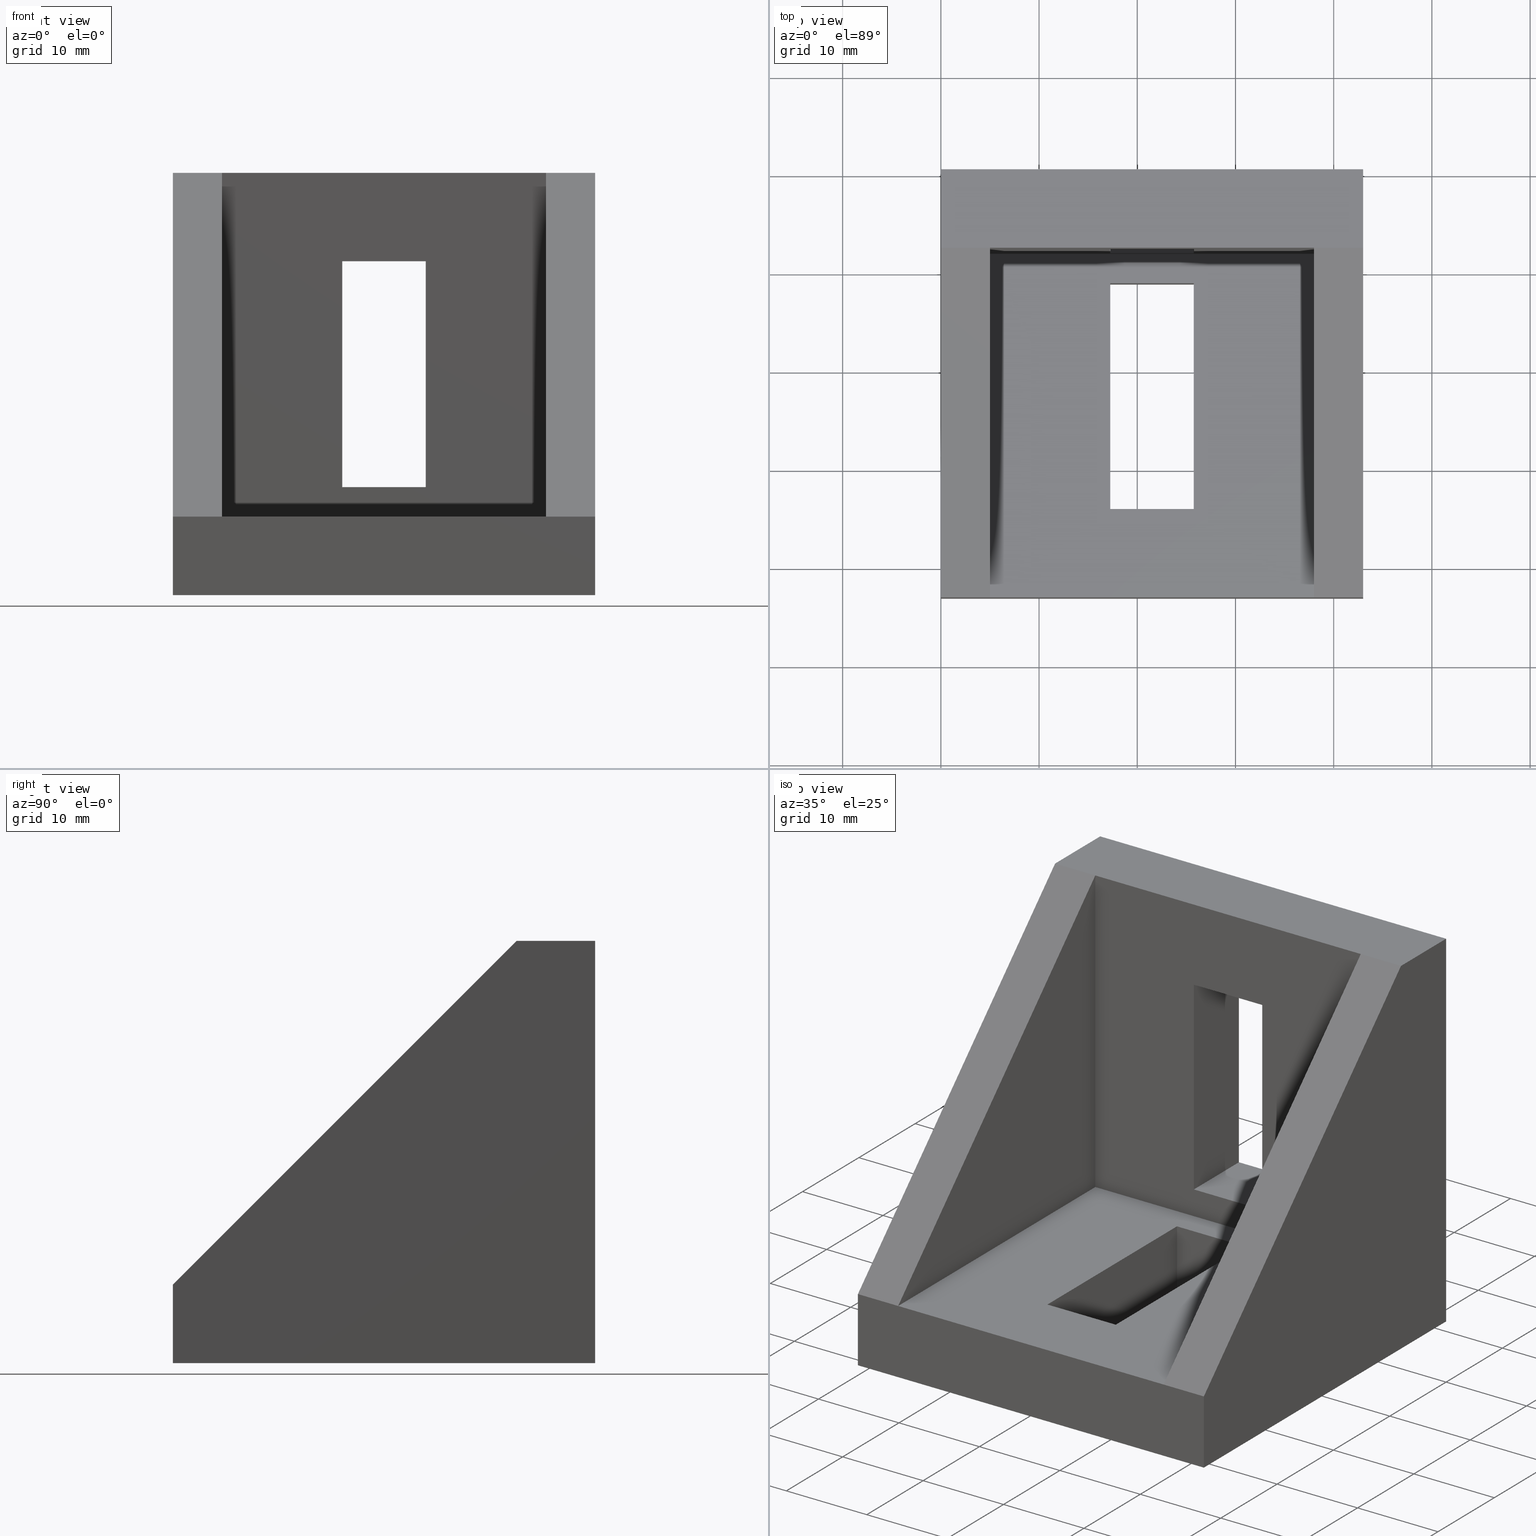
[diagram: canonical four-view strip — front | top / right | iso, engineering-drawing reading convention]
A machine part, canonical four-view strip (front | top / right | iso — engineering-drawing reading convention). The complete STEP part file that produces these views, byte-faithful:
ISO-10303-21;
HEADER;
/****************************************************************
 * Generated by software with PDE/Lib inside                    *
 * PDElib Version v4.4, created Mon 02/23/2004                  *
 * International Technegroup Inc. (www.iti-oh.com)              *
 ****************************************************************/
FILE_DESCRIPTION(('STEP AP203'),'2;1');
FILE_NAME('30.053.00.stp','2011-03-07T09:53:58',(''),(''),'2009.3.110','THINKDESIGN','');
FILE_SCHEMA(('CONFIG_CONTROL_DESIGN'));
ENDSEC;
DATA;
#2=CARTESIAN_POINT('',(2.864376E-014,5.421043E-014,-2.632989E-015));
#3=DIRECTION('',(0.000000025809569,1.224647E-016,1.000000000000000));
#4=DIRECTION('',(0.0,-1.0,0.0));
#5=AXIS2_PLACEMENT_3D('',#2,#3,#4);
#6=PLANE('',#5);
#7=CARTESIAN_POINT('',(2.864376E-014,5.421043E-014,-2.632989E-015));
#8=VERTEX_POINT('',#7);
#9=CARTESIAN_POINT('',(42.999999999827985,5.947641E-014,-0.000001109811490));
#10=VERTEX_POINT('',#9);
#11=CARTESIAN_POINT('',(2.864376E-014,5.421043E-014,-2.632989E-015));
#12=DIRECTION('',(1.000000000000000,1.224647E-016,-0.000000025809569));
#13=VECTOR('',#12,42.999999999827970);
#14=LINE('',#11,#13);
#15=EDGE_CURVE('',#8,#10,#14,.T.);
#16=ORIENTED_EDGE('',*,*,#15,.T.);
#17=CARTESIAN_POINT('',(42.999999999827992,-42.999999999827985,-0.000001109811481));
#18=VERTEX_POINT('',#17);
#19=CARTESIAN_POINT('',(42.999999999827985,6.394885E-014,-0.000001109811490));
#20=DIRECTION('',(0.0,-1.0,0.0));
#21=VECTOR('',#20,42.999999999828049);
#22=LINE('',#19,#21);
#23=EDGE_CURVE('',#10,#18,#22,.T.);
#24=ORIENTED_EDGE('',*,*,#23,.T.);
#25=CARTESIAN_POINT('',(3.390974E-014,-42.999999999827992,4.476881E-015));
#26=VERTEX_POINT('',#25);
#27=CARTESIAN_POINT('',(3.390974E-014,-42.999999999827992,4.476881E-015));
#28=DIRECTION('',(1.000000000000000,1.652425E-016,-0.000000025809569));
#29=VECTOR('',#28,42.999999999827970);
#30=LINE('',#27,#29);
#31=EDGE_CURVE('',#26,#18,#30,.T.);
#32=ORIENTED_EDGE('',*,*,#31,.F.);
#33=CARTESIAN_POINT('',(2.864376E-014,5.684342E-014,-2.632989E-015));
#34=DIRECTION('',(0.0,-1.0,0.0));
#35=VECTOR('',#34,42.999999999828049);
#36=LINE('',#33,#35);
#37=EDGE_CURVE('',#8,#26,#36,.T.);
#38=ORIENTED_EDGE('',*,*,#37,.F.);
#39=EDGE_LOOP('',(#16,#24,#32,#38));
#40=FACE_OUTER_BOUND('',#39,.T.);
#41=CARTESIAN_POINT('',(25.749999999897010,-10.999999999955948,-0.000000664596420));
#42=VERTEX_POINT('',#41);
#43=CARTESIAN_POINT('',(25.749999999897014,-33.999999999863746,-0.000000664596413));
#44=VERTEX_POINT('',#43);
#45=CARTESIAN_POINT('',(25.749999999897010,-10.999999999955948,-0.000000664596420));
#46=DIRECTION('',(0.0,-1.0,0.0));
#47=VECTOR('',#46,22.999999999907800);
#48=LINE('',#45,#47);
#49=EDGE_CURVE('',#42,#44,#48,.T.);
#50=ORIENTED_EDGE('',*,*,#49,.F.);
#51=CARTESIAN_POINT('',(17.249999999930843,-10.999999999955950,-0.000000445215080));
#52=VERTEX_POINT('',#51);
#53=CARTESIAN_POINT('',(17.249999999930843,-10.999999999955950,-0.000000445215080));
#54=DIRECTION('',(1.000000000000000,2.089832E-016,-0.000000025809569));
#55=VECTOR('',#54,8.499999999966169);
#56=LINE('',#53,#55);
#57=EDGE_CURVE('',#52,#42,#56,.T.);
#58=ORIENTED_EDGE('',*,*,#57,.F.);
#59=CARTESIAN_POINT('',(17.249999999930843,-33.999999999863746,-0.000000445215072));
#60=VERTEX_POINT('',#59);
#61=CARTESIAN_POINT('',(17.249999999930843,-33.999999999863746,-0.000000445215072));
#62=DIRECTION('',(0.0,1.0,0.0));
#63=VECTOR('',#62,22.999999999907796);
#64=LINE('',#61,#63);
#65=EDGE_CURVE('',#60,#52,#64,.T.);
#66=ORIENTED_EDGE('',*,*,#65,.F.);
#67=CARTESIAN_POINT('',(17.249999999930843,-33.999999999863746,-0.000000445215072));
#68=DIRECTION('',(1.000000000000000,0.0,-0.000000025809569));
#69=VECTOR('',#68,8.499999999966175);
#70=LINE('',#67,#69);
#71=EDGE_CURVE('',#60,#44,#70,.T.);
#72=ORIENTED_EDGE('',*,*,#71,.T.);
#73=EDGE_LOOP('',(#50,#58,#66,#72));
#74=FACE_BOUND('',#73,.T.);
#75=ADVANCED_FACE('',(#40,#74),#6,.F.);
#76=CARTESIAN_POINT('',(3.390974E-014,-42.999999999827992,4.476881E-015));
#77=DIRECTION('',(0.0,1.0,0.0));
#78=DIRECTION('',(0.000000025809569,0.0,1.000000000000000));
#79=AXIS2_PLACEMENT_3D('',#76,#77,#78);
#80=PLANE('',#79);
#81=ORIENTED_EDGE('',*,*,#31,.T.);
#82=CARTESIAN_POINT('',(43.000000206304527,-42.999999999827978,7.999998335251010));
#83=VERTEX_POINT('',#82);
#84=CARTESIAN_POINT('',(42.999999999827992,-42.999999999827985,-0.000001109811481));
#85=DIRECTION('',(0.000000025809569,0.0,1.000000000000000));
#86=VECTOR('',#85,7.999999445062485);
#87=LINE('',#84,#86);
#88=EDGE_CURVE('',#18,#83,#87,.T.);
#89=ORIENTED_EDGE('',*,*,#88,.T.);
#90=CARTESIAN_POINT('',(37.999999859088902,-42.999999999827978,7.999998464298865));
#91=VERTEX_POINT('',#90);
#92=CARTESIAN_POINT('',(37.999999859088902,-42.999999999827978,7.999998464298865));
#93=DIRECTION('',(1.000000000000000,0.0,-0.000000025809569));
#94=VECTOR('',#93,5.000000347215627);
#95=LINE('',#92,#94);
#96=EDGE_CURVE('',#91,#83,#95,.T.);
#97=ORIENTED_EDGE('',*,*,#96,.F.);
#98=CARTESIAN_POINT('',(4.999999859221011,-42.999999999827985,7.999999316014653));
#99=VERTEX_POINT('',#98);
#100=CARTESIAN_POINT('',(4.999999859221011,-42.999999999827985,7.999999316014653));
#101=DIRECTION('',(1.000000000000000,2.153160E-016,-0.000000025809569));
#102=VECTOR('',#101,32.999999999867896);
#103=LINE('',#100,#102);
#104=EDGE_CURVE('',#99,#91,#103,.T.);
#105=ORIENTED_EDGE('',*,*,#104,.F.);
#106=CARTESIAN_POINT('',(0.000000206476568,-42.999999999827985,7.999999445062490));
#107=VERTEX_POINT('',#106);
#108=CARTESIAN_POINT('',(0.000000206476568,-42.999999999827985,7.999999445062490));
#109=DIRECTION('',(1.000000000000000,0.0,-0.000000025809569));
#110=VECTOR('',#109,4.999999652744444);
#111=LINE('',#108,#110);
#112=EDGE_CURVE('',#107,#99,#111,.T.);
#113=ORIENTED_EDGE('',*,*,#112,.F.);
#114=CARTESIAN_POINT('',(3.390974E-014,-42.999999999827992,4.440892E-015));
#115=DIRECTION('',(0.000000025809569,0.0,1.000000000000000));
#116=VECTOR('',#115,7.999999445062485);
#117=LINE('',#114,#116);
#118=EDGE_CURVE('',#26,#107,#117,.T.);
#119=ORIENTED_EDGE('',*,*,#118,.F.);
#120=EDGE_LOOP('',(#81,#89,#97,#105,#113,#119));
#121=FACE_OUTER_BOUND('',#120,.T.);
#122=ADVANCED_FACE('',(#121),#80,.F.);
#123=CARTESIAN_POINT('',(0.000000206476568,-42.999999999827985,7.999999445062490));
#124=DIRECTION('',(-0.000000018250122,0.707106781186547,-0.707106781186548));
#125=DIRECTION('',(0.000000018250122,0.707106781186548,0.707106781186547));
#126=AXIS2_PLACEMENT_3D('',#123,#124,#125);
#127=PLANE('',#126);
#128=ORIENTED_EDGE('',*,*,#112,.T.);
#129=CARTESIAN_POINT('',(5.000000762555938,-7.999999999968056,42.999999315874504));
#130=VERTEX_POINT('',#129);
#131=CARTESIAN_POINT('',(4.999999859221011,-42.999999999827985,7.999999316014653));
#132=DIRECTION('',(0.000000018250121,0.707106781186548,0.707106781186547));
#133=VECTOR('',#132,49.497474682860201);
#134=LINE('',#131,#133);
#135=EDGE_CURVE('',#99,#130,#134,.T.);
#136=ORIENTED_EDGE('',*,*,#135,.T.);
#137=CARTESIAN_POINT('',(0.000001109811495,-7.999999999968057,42.999999444922345));
#138=VERTEX_POINT('',#137);
#139=CARTESIAN_POINT('',(0.000001109811495,-7.999999999968057,42.999999444922345));
#140=DIRECTION('',(1.000000000000000,1.776357E-016,-0.000000025809569));
#141=VECTOR('',#140,4.999999652744444);
#142=LINE('',#139,#141);
#143=EDGE_CURVE('',#138,#130,#142,.T.);
#144=ORIENTED_EDGE('',*,*,#143,.F.);
#145=CARTESIAN_POINT('',(0.000000206476568,-42.999999999827985,7.999999445062493));
#146=DIRECTION('',(0.000000018250122,0.707106781186548,0.707106781186547));
#147=VECTOR('',#146,49.497474682860194);
#148=LINE('',#145,#147);
#149=EDGE_CURVE('',#107,#138,#148,.T.);
#150=ORIENTED_EDGE('',*,*,#149,.F.);
#151=EDGE_LOOP('',(#128,#136,#144,#150));
#152=FACE_OUTER_BOUND('',#151,.T.);
#153=ADVANCED_FACE('',(#152),#127,.F.);
#154=CARTESIAN_POINT('',(0.000000206476568,-42.999999999827985,7.999999445062490));
#155=DIRECTION('',(-0.000000018250122,0.707106781186547,-0.707106781186548));
#156=DIRECTION('',(0.000000018250122,0.707106781186548,0.707106781186547));
#157=AXIS2_PLACEMENT_3D('',#154,#155,#156);
#158=PLANE('',#157);
#159=CARTESIAN_POINT('',(43.000001109639449,-7.999999999968051,42.999998335110874));
#160=VERTEX_POINT('',#159);
#161=CARTESIAN_POINT('',(43.000000206304520,-42.999999999827985,7.999998335251014));
#162=DIRECTION('',(0.000000018250122,0.707106781186548,0.707106781186547));
#163=VECTOR('',#162,49.497474682860201);
#164=LINE('',#161,#163);
#165=EDGE_CURVE('',#83,#160,#164,.T.);
#166=ORIENTED_EDGE('',*,*,#165,.T.);
#167=CARTESIAN_POINT('',(38.000000762423824,-7.999999999968052,42.999998464158729));
#168=VERTEX_POINT('',#167);
#169=CARTESIAN_POINT('',(38.000000762423824,-7.999999999968052,42.999998464158729));
#170=DIRECTION('',(1.000000000000000,1.776357E-016,-0.000000025809569));
#171=VECTOR('',#170,5.000000347215627);
#172=LINE('',#169,#171);
#173=EDGE_CURVE('',#168,#160,#172,.T.);
#174=ORIENTED_EDGE('',*,*,#173,.F.);
#175=CARTESIAN_POINT('',(37.999999859088902,-42.999999999827978,7.999998464298865));
#176=DIRECTION('',(0.000000018250122,0.707106781186548,0.707106781186547));
#177=VECTOR('',#176,49.497474682860201);
#178=LINE('',#175,#177);
#179=EDGE_CURVE('',#91,#168,#178,.T.);
#180=ORIENTED_EDGE('',*,*,#179,.F.);
#181=ORIENTED_EDGE('',*,*,#96,.T.);
#182=EDGE_LOOP('',(#166,#174,#180,#181));
#183=FACE_OUTER_BOUND('',#182,.T.);
#184=ADVANCED_FACE('',(#183),#158,.F.);
#185=CARTESIAN_POINT('',(0.000001109811495,-7.999999999968057,42.999999444922345));
#186=DIRECTION('',(-0.000000025809569,8.881784E-016,-1.000000000000000));
#187=DIRECTION('',(0.0,1.0,0.0));
#188=AXIS2_PLACEMENT_3D('',#185,#186,#187);
#189=PLANE('',#188);
#190=ORIENTED_EDGE('',*,*,#143,.T.);
#191=CARTESIAN_POINT('',(5.000000762555938,-7.999999999968056,42.999999315874511));
#192=DIRECTION('',(1.000000000000000,1.076580E-016,-0.000000025809569));
#193=VECTOR('',#192,32.999999999867896);
#194=LINE('',#191,#193);
#195=EDGE_CURVE('',#130,#168,#194,.T.);
#196=ORIENTED_EDGE('',*,*,#195,.T.);
#197=ORIENTED_EDGE('',*,*,#173,.T.);
#198=CARTESIAN_POINT('',(43.000001109639456,6.566211E-014,42.999998335110853));
#199=VERTEX_POINT('',#198);
#200=CARTESIAN_POINT('',(43.000001109639449,-7.999999999968051,42.999998335110874));
#201=DIRECTION('',(0.0,1.0,0.0));
#202=VECTOR('',#201,7.999999999968117);
#203=LINE('',#200,#202);
#204=EDGE_CURVE('',#160,#199,#203,.T.);
#205=ORIENTED_EDGE('',*,*,#204,.T.);
#206=CARTESIAN_POINT('',(0.000001109811502,6.039613E-014,42.999999444922338));
#207=VERTEX_POINT('',#206);
#208=CARTESIAN_POINT('',(0.000001109811502,6.039613E-014,42.999999444922338));
#209=DIRECTION('',(1.000000000000000,1.224647E-016,-0.000000025809569));
#210=VECTOR('',#209,42.999999999827970);
#211=LINE('',#208,#210);
#212=EDGE_CURVE('',#207,#199,#211,.T.);
#213=ORIENTED_EDGE('',*,*,#212,.F.);
#214=CARTESIAN_POINT('',(0.000001109811495,-7.999999999968057,42.999999444922345));
#215=DIRECTION('',(0.0,1.0,0.0));
#216=VECTOR('',#215,7.999999999968117);
#217=LINE('',#214,#216);
#218=EDGE_CURVE('',#138,#207,#217,.T.);
#219=ORIENTED_EDGE('',*,*,#218,.F.);
#220=EDGE_LOOP('',(#190,#196,#197,#205,#213,#219));
#221=FACE_OUTER_BOUND('',#220,.T.);
#222=ADVANCED_FACE('',(#221),#189,.F.);
#223=CARTESIAN_POINT('',(0.000001109811502,6.039613E-014,42.999999444922338));
#224=DIRECTION('',(0.0,-1.0,0.0));
#225=DIRECTION('',(-0.000000025809569,0.0,-1.000000000000000));
#226=AXIS2_PLACEMENT_3D('',#223,#224,#225);
#227=PLANE('',#226);
#228=CARTESIAN_POINT('',(0.000001109811502,6.039613E-014,42.999999444922338));
#229=DIRECTION('',(-0.000000025809569,-1.224647E-016,-1.000000000000000));
#230=VECTOR('',#229,42.999999444922352);
#231=LINE('',#228,#230);
#232=EDGE_CURVE('',#207,#8,#231,.T.);
#233=ORIENTED_EDGE('',*,*,#232,.F.);
#234=ORIENTED_EDGE('',*,*,#212,.T.);
#235=CARTESIAN_POINT('',(43.000001109639456,6.566211E-014,42.999998335110845));
#236=DIRECTION('',(-0.000000025809569,-1.224647E-016,-1.000000000000000));
#237=VECTOR('',#236,42.999999444922352);
#238=LINE('',#235,#237);
#239=EDGE_CURVE('',#199,#10,#238,.T.);
#240=ORIENTED_EDGE('',*,*,#239,.T.);
#241=ORIENTED_EDGE('',*,*,#15,.F.);
#242=EDGE_LOOP('',(#233,#234,#240,#241));
#243=FACE_OUTER_BOUND('',#242,.T.);
#244=CARTESIAN_POINT('',(17.250000504411069,1.140545E-013,33.999998999743426));
#245=VERTEX_POINT('',#244);
#246=CARTESIAN_POINT('',(25.750000504377017,1.150955E-013,33.999998780362084));
#247=VERTEX_POINT('',#246);
#248=CARTESIAN_POINT('',(17.250000504411069,1.140545E-013,33.999998999743426));
#249=DIRECTION('',(1.000000000000000,1.224647E-016,-0.000000025809570));
#250=VECTOR('',#249,8.499999999965951);
#251=LINE('',#248,#250);
#252=EDGE_CURVE('',#245,#247,#251,.T.);
#253=ORIENTED_EDGE('',*,*,#252,.F.);
#254=CARTESIAN_POINT('',(17.249999910790972,1.131664E-013,10.999998999835292));
#255=VERTEX_POINT('',#254);
#256=CARTESIAN_POINT('',(17.249999910790972,1.131664E-013,10.999998999835292));
#257=DIRECTION('',(0.000000025809569,3.160761E-024,1.000000000000000));
#258=VECTOR('',#257,22.999999999908141);
#259=LINE('',#256,#258);
#260=EDGE_CURVE('',#255,#245,#259,.T.);
#261=ORIENTED_EDGE('',*,*,#260,.F.);
#262=CARTESIAN_POINT('',(25.749999910756920,1.142073E-013,10.999998780453952));
#263=VERTEX_POINT('',#262);
#264=CARTESIAN_POINT('',(17.249999910790972,1.131664E-013,10.999998999835292));
#265=DIRECTION('',(1.000000000000000,1.224647E-016,-0.000000025809569));
#266=VECTOR('',#265,8.499999999965951);
#267=LINE('',#264,#266);
#268=EDGE_CURVE('',#255,#263,#267,.T.);
#269=ORIENTED_EDGE('',*,*,#268,.T.);
#270=CARTESIAN_POINT('',(25.749999910756920,1.142073E-013,10.999998780453950));
#271=DIRECTION('',(0.000000025809569,3.160761E-024,1.000000000000000));
#272=VECTOR('',#271,22.999999999908141);
#273=LINE('',#270,#272);
#274=EDGE_CURVE('',#263,#247,#273,.T.);
#275=ORIENTED_EDGE('',*,*,#274,.T.);
#276=EDGE_LOOP('',(#253,#261,#269,#275));
#277=FACE_BOUND('',#276,.T.);
#278=ADVANCED_FACE('',(#243,#277),#227,.F.);
#279=CARTESIAN_POINT('',(0.000001220792770,4.300004724509624,47.300004113941348));
#280=DIRECTION('',(-1.000000000000000,-1.224647E-016,0.000000025809569));
#281=DIRECTION('',(-0.000000025809569,-3.160761E-024,-1.000000000000000));
#282=AXIS2_PLACEMENT_3D('',#279,#280,#281);
#283=PLANE('',#282);
#284=ORIENTED_EDGE('',*,*,#37,.T.);
#285=ORIENTED_EDGE('',*,*,#118,.T.);
#286=ORIENTED_EDGE('',*,*,#149,.T.);
#287=ORIENTED_EDGE('',*,*,#218,.T.);
#288=ORIENTED_EDGE('',*,*,#232,.T.);
#289=EDGE_LOOP('',(#284,#285,#286,#287,#288));
#290=FACE_OUTER_BOUND('',#289,.T.);
#291=ADVANCED_FACE('',(#290),#283,.T.);
#292=CARTESIAN_POINT('',(43.000001220620739,4.300004724509630,47.300003004129877));
#293=DIRECTION('',(-1.000000000000000,-1.224647E-016,0.000000025809569));
#294=DIRECTION('',(-0.000000025809569,-3.160761E-024,-1.000000000000000));
#295=AXIS2_PLACEMENT_3D('',#292,#293,#294);
#296=PLANE('',#295);
#297=ORIENTED_EDGE('',*,*,#239,.F.);
#298=ORIENTED_EDGE('',*,*,#204,.F.);
#299=ORIENTED_EDGE('',*,*,#165,.F.);
#300=ORIENTED_EDGE('',*,*,#88,.F.);
#301=ORIENTED_EDGE('',*,*,#23,.F.);
#302=EDGE_LOOP('',(#297,#298,#299,#300,#301));
#303=FACE_OUTER_BOUND('',#302,.T.);
#304=ADVANCED_FACE('',(#303),#296,.F.);
#305=CARTESIAN_POINT('',(4.999999859221006,-7.999999999968056,7.999999316014500));
#306=DIRECTION('',(0.0,1.0,0.0));
#307=DIRECTION('',(0.000000025809569,0.0,1.000000000000000));
#308=AXIS2_PLACEMENT_3D('',#305,#306,#307);
#309=PLANE('',#308);
#310=CARTESIAN_POINT('',(4.999999859221006,-7.999999999968056,7.999999316014500));
#311=VERTEX_POINT('',#310);
#312=CARTESIAN_POINT('',(37.999999859088895,-7.999999999968052,7.999998464298708));
#313=VERTEX_POINT('',#312);
#314=CARTESIAN_POINT('',(4.999999859221006,-7.999999999968056,7.999999316014500));
#315=DIRECTION('',(1.000000000000000,1.345725E-016,-0.000000025809569));
#316=VECTOR('',#315,32.999999999867896);
#317=LINE('',#314,#316);
#318=EDGE_CURVE('',#311,#313,#317,.T.);
#319=ORIENTED_EDGE('',*,*,#318,.T.);
#320=CARTESIAN_POINT('',(37.999999859088895,-7.999999999968052,7.999998464298713));
#321=DIRECTION('',(0.000000025809569,0.0,1.000000000000000));
#322=VECTOR('',#321,34.999999999860030);
#323=LINE('',#320,#322);
#324=EDGE_CURVE('',#313,#168,#323,.T.);
#325=ORIENTED_EDGE('',*,*,#324,.T.);
#326=ORIENTED_EDGE('',*,*,#195,.F.);
#327=CARTESIAN_POINT('',(4.999999859221005,-7.999999999968056,7.999999316014502));
#328=DIRECTION('',(0.000000025809569,0.0,1.000000000000000));
#329=VECTOR('',#328,34.999999999860016);
#330=LINE('',#327,#329);
#331=EDGE_CURVE('',#311,#130,#330,.T.);
#332=ORIENTED_EDGE('',*,*,#331,.F.);
#333=EDGE_LOOP('',(#319,#325,#326,#332));
#334=FACE_OUTER_BOUND('',#333,.T.);
#335=CARTESIAN_POINT('',(25.750000504377017,-7.999999999967879,33.999998780362084));
#336=VERTEX_POINT('',#335);
#337=CARTESIAN_POINT('',(25.749999910756920,-7.999999999967880,10.999998780453950));
#338=VERTEX_POINT('',#337);
#339=CARTESIAN_POINT('',(25.750000504377017,-7.999999999967879,33.999998780362084));
#340=DIRECTION('',(-0.000000025809569,0.0,-1.000000000000000));
#341=VECTOR('',#340,22.999999999908141);
#342=LINE('',#339,#341);
#343=EDGE_CURVE('',#336,#338,#342,.T.);
#344=ORIENTED_EDGE('',*,*,#343,.T.);
#345=CARTESIAN_POINT('',(17.249999910790972,-7.999999999967882,10.999998999835292));
#346=VERTEX_POINT('',#345);
#347=CARTESIAN_POINT('',(17.249999910790972,-7.999999999967882,10.999998999835292));
#348=DIRECTION('',(1.000000000000000,1.044916E-016,-0.000000025809570));
#349=VECTOR('',#348,8.499999999965951);
#350=LINE('',#347,#349);
#351=EDGE_CURVE('',#346,#338,#350,.T.);
#352=ORIENTED_EDGE('',*,*,#351,.F.);
#353=CARTESIAN_POINT('',(17.250000504411069,-7.999999999967881,33.999998999743426));
#354=VERTEX_POINT('',#353);
#355=CARTESIAN_POINT('',(17.250000504411069,-7.999999999967881,33.999998999743426));
#356=DIRECTION('',(-0.000000025809569,0.0,-1.000000000000000));
#357=VECTOR('',#356,22.999999999908141);
#358=LINE('',#355,#357);
#359=EDGE_CURVE('',#354,#346,#358,.T.);
#360=ORIENTED_EDGE('',*,*,#359,.F.);
#361=CARTESIAN_POINT('',(17.250000504411069,-7.999999999967881,33.999998999743426));
#362=DIRECTION('',(1.000000000000000,1.044916E-016,-0.000000025809570));
#363=VECTOR('',#362,8.499999999965951);
#364=LINE('',#361,#363);
#365=EDGE_CURVE('',#354,#336,#364,.T.);
#366=ORIENTED_EDGE('',*,*,#365,.T.);
#367=EDGE_LOOP('',(#344,#352,#360,#366));
#368=FACE_BOUND('',#367,.T.);
#369=ADVANCED_FACE('',(#334,#368),#309,.F.);
#370=CARTESIAN_POINT('',(4.999999859221012,-56.999999999968054,7.999999316014498));
#371=DIRECTION('',(-0.000000025809570,-3.160761E-024,-1.000000000000000));
#372=DIRECTION('',(0.0,1.0,0.0));
#373=AXIS2_PLACEMENT_3D('',#370,#371,#372);
#374=PLANE('',#373);
#375=CARTESIAN_POINT('',(4.999999859221011,-42.999999999827985,7.999999316014498));
#376=DIRECTION('',(0.0,1.0,0.0));
#377=VECTOR('',#376,34.999999999859931);
#378=LINE('',#375,#377);
#379=EDGE_CURVE('',#99,#311,#378,.T.);
#380=ORIENTED_EDGE('',*,*,#379,.F.);
#381=ORIENTED_EDGE('',*,*,#104,.T.);
#382=CARTESIAN_POINT('',(37.999999859088902,-42.999999999827985,7.999998464298701));
#383=DIRECTION('',(0.0,1.0,0.0));
#384=VECTOR('',#383,34.999999999859931);
#385=LINE('',#382,#384);
#386=EDGE_CURVE('',#91,#313,#385,.T.);
#387=ORIENTED_EDGE('',*,*,#386,.T.);
#388=ORIENTED_EDGE('',*,*,#318,.F.);
#389=EDGE_LOOP('',(#380,#381,#387,#388));
#390=FACE_OUTER_BOUND('',#389,.T.);
#391=CARTESIAN_POINT('',(17.250000206407385,-10.999999999955948,7.999998999847263));
#392=VERTEX_POINT('',#391);
#393=CARTESIAN_POINT('',(17.250000206407385,-33.999999999863746,7.999998999847271));
#394=VERTEX_POINT('',#393);
#395=CARTESIAN_POINT('',(17.250000206407385,-10.999999999955948,7.999998999847263));
#396=DIRECTION('',(0.0,-1.0,0.0));
#397=VECTOR('',#396,22.999999999907800);
#398=LINE('',#395,#397);
#399=EDGE_CURVE('',#392,#394,#398,.T.);
#400=ORIENTED_EDGE('',*,*,#399,.F.);
#401=CARTESIAN_POINT('',(25.750000206373553,-10.999999999955946,7.999998780465917));
#402=VERTEX_POINT('',#401);
#403=CARTESIAN_POINT('',(17.250000206407385,-10.999999999955948,7.999998999847263));
#404=DIRECTION('',(1.000000000000000,2.089832E-016,-0.000000025809570));
#405=VECTOR('',#404,8.499999999966169);
#406=LINE('',#403,#405);
#407=EDGE_CURVE('',#392,#402,#406,.T.);
#408=ORIENTED_EDGE('',*,*,#407,.T.);
#409=CARTESIAN_POINT('',(25.750000206373556,-33.999999999863746,7.999998780465917));
#410=VERTEX_POINT('',#409);
#411=CARTESIAN_POINT('',(25.750000206373556,-33.999999999863746,7.999998780465917));
#412=DIRECTION('',(0.0,1.0,0.0));
#413=VECTOR('',#412,22.999999999907796);
#414=LINE('',#411,#413);
#415=EDGE_CURVE('',#410,#402,#414,.T.);
#416=ORIENTED_EDGE('',*,*,#415,.F.);
#417=CARTESIAN_POINT('',(17.250000206407385,-33.999999999863746,7.999998999847271));
#418=DIRECTION('',(1.000000000000000,0.0,-0.000000025809571));
#419=VECTOR('',#418,8.499999999966175);
#420=LINE('',#417,#419);
#421=EDGE_CURVE('',#394,#410,#420,.T.);
#422=ORIENTED_EDGE('',*,*,#421,.F.);
#423=EDGE_LOOP('',(#400,#408,#416,#422));
#424=FACE_BOUND('',#423,.T.);
#425=ADVANCED_FACE('',(#390,#424),#374,.F.);
#426=CARTESIAN_POINT('',(5.000001193575866,-3.099995275466162,59.700004040521293));
#427=DIRECTION('',(1.000000000000000,1.224647E-016,-0.000000025809569));
#428=DIRECTION('',(0.0,-1.0,0.0));
#429=AXIS2_PLACEMENT_3D('',#426,#427,#428);
#430=PLANE('',#429);
#431=ORIENTED_EDGE('',*,*,#379,.T.);
#432=ORIENTED_EDGE('',*,*,#331,.T.);
#433=ORIENTED_EDGE('',*,*,#135,.F.);
#434=EDGE_LOOP('',(#431,#432,#433));
#435=FACE_OUTER_BOUND('',#434,.T.);
#436=ADVANCED_FACE('',(#435),#430,.T.);
#437=CARTESIAN_POINT('',(38.000001193443765,-3.099995275466158,59.700003188805503));
#438=DIRECTION('',(1.000000000000000,1.224647E-016,-0.000000025809569));
#439=DIRECTION('',(0.0,-1.0,0.0));
#440=AXIS2_PLACEMENT_3D('',#437,#438,#439);
#441=PLANE('',#440);
#442=ORIENTED_EDGE('',*,*,#179,.T.);
#443=ORIENTED_EDGE('',*,*,#324,.F.);
#444=ORIENTED_EDGE('',*,*,#386,.F.);
#445=EDGE_LOOP('',(#442,#443,#444));
#446=FACE_OUTER_BOUND('',#445,.T.);
#447=ADVANCED_FACE('',(#446),#441,.F.);
#448=CARTESIAN_POINT('',(17.250000504411069,1.140545E-013,33.999998999743426));
#449=DIRECTION('',(0.000000025809569,3.160761E-024,1.000000000000000));
#450=DIRECTION('',(0.0,-1.0,0.0));
#451=AXIS2_PLACEMENT_3D('',#448,#449,#450);
#452=PLANE('',#451);
#453=CARTESIAN_POINT('',(17.250000504411069,1.136868E-013,33.999998999743426));
#454=DIRECTION('',(0.0,-1.0,0.0));
#455=VECTOR('',#454,7.999999999967995);
#456=LINE('',#453,#455);
#457=EDGE_CURVE('',#245,#354,#456,.T.);
#458=ORIENTED_EDGE('',*,*,#457,.F.);
#459=ORIENTED_EDGE('',*,*,#252,.T.);
#460=CARTESIAN_POINT('',(25.750000504377017,1.154632E-013,33.999998780362084));
#461=DIRECTION('',(0.0,-1.0,0.0));
#462=VECTOR('',#461,7.999999999967995);
#463=LINE('',#460,#462);
#464=EDGE_CURVE('',#247,#336,#463,.T.);
#465=ORIENTED_EDGE('',*,*,#464,.T.);
#466=ORIENTED_EDGE('',*,*,#365,.F.);
#467=EDGE_LOOP('',(#458,#459,#465,#466));
#468=FACE_OUTER_BOUND('',#467,.T.);
#469=ADVANCED_FACE('',(#468),#452,.F.);
#470=CARTESIAN_POINT('',(17.249999910790972,-7.999999999967882,10.999998999835292));
#471=DIRECTION('',(-0.000000025809570,-3.160761E-024,-1.000000000000000));
#472=DIRECTION('',(0.0,1.0,0.0));
#473=AXIS2_PLACEMENT_3D('',#470,#471,#472);
#474=PLANE('',#473);
#475=CARTESIAN_POINT('',(25.749999910756920,-7.999999999967880,10.999998780453950));
#476=DIRECTION('',(0.0,1.0,0.0));
#477=VECTOR('',#476,7.999999999967995);
#478=LINE('',#475,#477);
#479=EDGE_CURVE('',#338,#263,#478,.T.);
#480=ORIENTED_EDGE('',*,*,#479,.T.);
#481=ORIENTED_EDGE('',*,*,#268,.F.);
#482=CARTESIAN_POINT('',(17.249999910790972,-7.999999999967882,10.999998999835292));
#483=DIRECTION('',(0.0,1.0,0.0));
#484=VECTOR('',#483,7.999999999967995);
#485=LINE('',#482,#484);
#486=EDGE_CURVE('',#346,#255,#485,.T.);
#487=ORIENTED_EDGE('',*,*,#486,.F.);
#488=ORIENTED_EDGE('',*,*,#351,.T.);
#489=EDGE_LOOP('',(#480,#481,#487,#488));
#490=FACE_OUTER_BOUND('',#489,.T.);
#491=ADVANCED_FACE('',(#490),#474,.F.);
#492=CARTESIAN_POINT('',(17.249999851428836,0.800004724464610,8.699994275375008));
#493=DIRECTION('',(1.000000000000000,1.224647E-016,-0.000000025809569));
#494=DIRECTION('',(0.000000025809569,3.160761E-024,1.000000000000000));
#495=AXIS2_PLACEMENT_3D('',#492,#493,#494);
#496=PLANE('',#495);
#497=ORIENTED_EDGE('',*,*,#359,.T.);
#498=ORIENTED_EDGE('',*,*,#486,.T.);
#499=ORIENTED_EDGE('',*,*,#260,.T.);
#500=ORIENTED_EDGE('',*,*,#457,.T.);
#501=EDGE_LOOP('',(#497,#498,#499,#500));
#502=FACE_OUTER_BOUND('',#501,.T.);
#503=ADVANCED_FACE('',(#502),#496,.T.);
#504=CARTESIAN_POINT('',(25.749999851394787,0.800004724464611,8.699994055993667));
#505=DIRECTION('',(1.000000000000000,1.224647E-016,-0.000000025809569));
#506=DIRECTION('',(0.000000025809569,3.160761E-024,1.000000000000000));
#507=AXIS2_PLACEMENT_3D('',#504,#505,#506);
#508=PLANE('',#507);
#509=ORIENTED_EDGE('',*,*,#464,.F.);
#510=ORIENTED_EDGE('',*,*,#274,.F.);
#511=ORIENTED_EDGE('',*,*,#479,.F.);
#512=ORIENTED_EDGE('',*,*,#343,.F.);
#513=EDGE_LOOP('',(#509,#510,#511,#512));
#514=FACE_OUTER_BOUND('',#513,.T.);
#515=ADVANCED_FACE('',(#514),#508,.F.);
#516=CARTESIAN_POINT('',(25.750000206374395,-10.999960629664351,8.000038150757719));
#517=DIRECTION('',(1.000000000000000,2.769305E-016,-0.000000025809569));
#518=DIRECTION('',(0.0,-1.0,0.0));
#519=AXIS2_PLACEMENT_3D('',#516,#517,#518);
#520=PLANE('',#519);
#521=CARTESIAN_POINT('',(25.750000206373553,-33.999999999863746,7.999998780465916));
#522=DIRECTION('',(-0.000000025809569,0.0,-1.000000000000000));
#523=VECTOR('',#522,7.999999445062332);
#524=LINE('',#521,#523);
#525=EDGE_CURVE('',#410,#44,#524,.T.);
#526=ORIENTED_EDGE('',*,*,#525,.F.);
#527=ORIENTED_EDGE('',*,*,#415,.T.);
#528=CARTESIAN_POINT('',(25.750000206373549,-10.999999999955946,7.999998780465916));
#529=DIRECTION('',(-0.000000025809569,-2.220446E-016,-1.000000000000000));
#530=VECTOR('',#529,7.999999445062339);
#531=LINE('',#528,#530);
#532=EDGE_CURVE('',#402,#42,#531,.T.);
#533=ORIENTED_EDGE('',*,*,#532,.T.);
#534=ORIENTED_EDGE('',*,*,#49,.T.);
#535=EDGE_LOOP('',(#526,#527,#533,#534));
#536=FACE_OUTER_BOUND('',#535,.T.);
#537=ADVANCED_FACE('',(#536),#520,.F.);
#538=CARTESIAN_POINT('',(17.250000206408458,-34.000039370155342,8.000038370139073));
#539=DIRECTION('',(-1.000000000000000,-1.224647E-016,0.000000025809569));
#540=DIRECTION('',(0.0,1.0,0.0));
#541=AXIS2_PLACEMENT_3D('',#538,#539,#540);
#542=PLANE('',#541);
#543=CARTESIAN_POINT('',(17.250000206407382,-10.999999999955948,7.999998999847264));
#544=DIRECTION('',(-0.000000025809569,-2.220446E-016,-1.000000000000000));
#545=VECTOR('',#544,7.999999445062346);
#546=LINE('',#543,#545);
#547=EDGE_CURVE('',#392,#52,#546,.T.);
#548=ORIENTED_EDGE('',*,*,#547,.F.);
#549=ORIENTED_EDGE('',*,*,#399,.T.);
#550=CARTESIAN_POINT('',(17.250000206407382,-33.999999999863746,7.999998999847271));
#551=DIRECTION('',(-0.000000025809569,0.0,-1.000000000000000));
#552=VECTOR('',#551,7.999999445062346);
#553=LINE('',#550,#552);
#554=EDGE_CURVE('',#394,#60,#553,.T.);
#555=ORIENTED_EDGE('',*,*,#554,.T.);
#556=ORIENTED_EDGE('',*,*,#65,.T.);
#557=EDGE_LOOP('',(#548,#549,#555,#556));
#558=FACE_OUTER_BOUND('',#557,.T.);
#559=ADVANCED_FACE('',(#558),#542,.F.);
#560=CARTESIAN_POINT('',(25.750001220690319,-33.999999999863739,47.300025275344979));
#561=DIRECTION('',(0.0,-1.0,0.0));
#562=DIRECTION('',(-1.000000000000000,0.0,0.000000025809569));
#563=AXIS2_PLACEMENT_3D('',#560,#561,#562);
#564=PLANE('',#563);
#565=ORIENTED_EDGE('',*,*,#525,.T.);
#566=ORIENTED_EDGE('',*,*,#71,.F.);
#567=ORIENTED_EDGE('',*,*,#554,.F.);
#568=ORIENTED_EDGE('',*,*,#421,.T.);
#569=EDGE_LOOP('',(#565,#566,#567,#568));
#570=FACE_OUTER_BOUND('',#569,.T.);
#571=ADVANCED_FACE('',(#570),#564,.F.);
#572=CARTESIAN_POINT('',(17.250001220724148,-10.999999999955943,47.300025494726313));
#573=DIRECTION('',(0.0,1.0,0.0));
#574=DIRECTION('',(1.000000000000000,0.0,-0.000000025809569));
#575=AXIS2_PLACEMENT_3D('',#572,#573,#574);
#576=PLANE('',#575);
#577=ORIENTED_EDGE('',*,*,#547,.T.);
#578=ORIENTED_EDGE('',*,*,#57,.T.);
#579=ORIENTED_EDGE('',*,*,#532,.F.);
#580=ORIENTED_EDGE('',*,*,#407,.F.);
#581=EDGE_LOOP('',(#577,#578,#579,#580));
#582=FACE_OUTER_BOUND('',#581,.T.);
#583=ADVANCED_FACE('',(#582),#576,.F.);
#584=CLOSED_SHELL('',(#75,#122,#153,#184,#222,#278,#291,#304,#369,#425,#436,#447,#469,#491,#503,#515,#537,#559,#571,#583));
#585=MANIFOLD_SOLID_BREP('',#584);
#591=(NAMED_UNIT(*)PLANE_ANGLE_UNIT()SI_UNIT($,.RADIAN.));
#592=DIMENSIONAL_EXPONENTS(0.0,0.0,0.0,0.0,0.0,0.0,0.0);
#593=PLANE_ANGLE_MEASURE_WITH_UNIT(PLANE_ANGLE_MEASURE(0.017453292500000),#591);
#597=(CONVERSION_BASED_UNIT('DEGREE',#593)NAMED_UNIT(#592)PLANE_ANGLE_UNIT());
#601=(NAMED_UNIT(*)SI_UNIT($,.STERADIAN.)SOLID_ANGLE_UNIT());
#605=(LENGTH_UNIT()NAMED_UNIT(*)SI_UNIT(.MILLI.,.METRE.));
#607=UNCERTAINTY_MEASURE_WITH_UNIT(LENGTH_MEASURE(0.001000000000000),#605,'DISTANCE_ACCURACY_VALUE','');
#609=(GEOMETRIC_REPRESENTATION_CONTEXT(3)GLOBAL_UNCERTAINTY_ASSIGNED_CONTEXT((#607))GLOBAL_UNIT_ASSIGNED_CONTEXT((#597,#601,#605))REPRESENTATION_CONTEXT('thinkdesign','2009.3.110'));
#610=ADVANCED_BREP_SHAPE_REPRESENTATION('',(#585),#609);
#611=APPLICATION_CONTEXT('configuration controlled 3D designs of mechanical parts and assemblies');
#612=APPLICATION_PROTOCOL_DEFINITION('International Standard','config_control_design',1995,#611);
#613=MECHANICAL_CONTEXT('None',#611,'mechanical');
#614=PRODUCT('None','None','None',(#613));
#615=PRODUCT_RELATED_PRODUCT_CATEGORY('detail',$,(#614));
#616=PRODUCT_CATEGORY('part',$);
#617=PRODUCT_CATEGORY_RELATIONSHIP('None','None',#616,#615);
#618=PERSON('PERSON1','None','None',$,$,$);
#619=ORGANIZATION('','None','None');
#620=PERSON_AND_ORGANIZATION(#618,#619);
#621=PERSON_AND_ORGANIZATION_ROLE('design_owner');
#622=CC_DESIGN_PERSON_AND_ORGANIZATION_ASSIGNMENT(#620,#621,(#614));
#623=PRODUCT_DEFINITION_FORMATION_WITH_SPECIFIED_SOURCE('None','None',#614,.NOT_KNOWN.);
#624=PERSON('PERSON2','None','None',$,$,$);
#625=ORGANIZATION('','None','None');
#626=PERSON_AND_ORGANIZATION(#624,#625);
#627=PERSON_AND_ORGANIZATION_ROLE('creator');
#628=CC_DESIGN_PERSON_AND_ORGANIZATION_ASSIGNMENT(#626,#627,(#623));
#629=PERSON('PERSON3','None','None',$,$,$);
#630=ORGANIZATION('','None','None');
#631=PERSON_AND_ORGANIZATION(#629,#630);
#632=PERSON_AND_ORGANIZATION_ROLE('part_supplier');
#633=CC_DESIGN_PERSON_AND_ORGANIZATION_ASSIGNMENT(#631,#632,(#623));
#634=APPROVAL_STATUS('approved');
#635=APPROVAL(#634,'None');
#636=PERSON('PERSON4','None','None',$,$,$);
#637=ORGANIZATION('','None','None');
#638=PERSON_AND_ORGANIZATION(#636,#637);
#639=APPROVAL_ROLE('None');
#640=APPROVAL_PERSON_ORGANIZATION(#638,#635,#639);
#641=CALENDAR_DATE(2011,7,3);
#642=COORDINATED_UNIVERSAL_TIME_OFFSET(0,0,.AHEAD.);
#643=LOCAL_TIME(9,53,58.0,#642);
#644=DATE_AND_TIME(#641,#643);
#645=APPROVAL_DATE_TIME(#644,#635);
#646=CC_DESIGN_APPROVAL(#635,(#623));
#647=SECURITY_CLASSIFICATION_LEVEL('unclassified');
#648=SECURITY_CLASSIFICATION('None','None',#647);
#649=CC_DESIGN_SECURITY_CLASSIFICATION(#648,(#623));
#650=APPROVAL_STATUS('approved');
#651=APPROVAL(#650,'None');
#652=PERSON('PERSON5','None','None',$,$,$);
#653=ORGANIZATION('','None','None');
#654=PERSON_AND_ORGANIZATION(#652,#653);
#655=APPROVAL_ROLE('None');
#656=APPROVAL_PERSON_ORGANIZATION(#654,#651,#655);
#657=CALENDAR_DATE(2011,7,3);
#658=COORDINATED_UNIVERSAL_TIME_OFFSET(0,0,.AHEAD.);
#659=LOCAL_TIME(9,53,58.0,#658);
#660=DATE_AND_TIME(#657,#659);
#661=APPROVAL_DATE_TIME(#660,#651);
#662=CC_DESIGN_APPROVAL(#651,(#648));
#663=PERSON('PERSON6','None','None',$,$,$);
#664=ORGANIZATION('','None','None');
#665=PERSON_AND_ORGANIZATION(#663,#664);
#666=PERSON_AND_ORGANIZATION_ROLE('classification_officer');
#667=CC_DESIGN_PERSON_AND_ORGANIZATION_ASSIGNMENT(#665,#666,(#648));
#668=DATE_TIME_ROLE('classification_date');
#669=CALENDAR_DATE(2011,7,3);
#670=COORDINATED_UNIVERSAL_TIME_OFFSET(0,0,.AHEAD.);
#671=LOCAL_TIME(9,53,58.0,#670);
#672=DATE_AND_TIME(#669,#671);
#673=CC_DESIGN_DATE_AND_TIME_ASSIGNMENT(#672,#668,(#648));
#674=DESIGN_CONTEXT('part definition',#611,'design');
#675=DOCUMENT_TYPE('cad_filename');
#676=DOCUMENT('None','None','None',#675);
#677=PRODUCT_DEFINITION_WITH_ASSOCIATED_DOCUMENTS('None','None',#623,#674,(#676));
#678=PERSON('PERSON7','None','None',$,$,$);
#679=ORGANIZATION('','None','None');
#680=PERSON_AND_ORGANIZATION(#678,#679);
#681=PERSON_AND_ORGANIZATION_ROLE('creator');
#682=CC_DESIGN_PERSON_AND_ORGANIZATION_ASSIGNMENT(#680,#681,(#677));
#683=DATE_TIME_ROLE('creation_date');
#684=CALENDAR_DATE(2011,7,3);
#685=COORDINATED_UNIVERSAL_TIME_OFFSET(0,0,.AHEAD.);
#686=LOCAL_TIME(9,53,58.0,#685);
#687=DATE_AND_TIME(#684,#686);
#688=CC_DESIGN_DATE_AND_TIME_ASSIGNMENT(#687,#683,(#677));
#689=APPROVAL_STATUS('approved');
#690=APPROVAL(#689,'None');
#691=PERSON('PERSON8','None','None',$,$,$);
#692=ORGANIZATION('','None','None');
#693=PERSON_AND_ORGANIZATION(#691,#692);
#694=APPROVAL_ROLE('None');
#695=APPROVAL_PERSON_ORGANIZATION(#693,#690,#694);
#696=CALENDAR_DATE(2011,7,3);
#697=COORDINATED_UNIVERSAL_TIME_OFFSET(0,0,.AHEAD.);
#698=LOCAL_TIME(9,53,58.0,#697);
#699=DATE_AND_TIME(#696,#698);
#700=APPROVAL_DATE_TIME(#699,#690);
#701=CC_DESIGN_APPROVAL(#690,(#677));
#702=PRODUCT_DEFINITION_SHAPE('None','None',#677);
#703=SHAPE_DEFINITION_REPRESENTATION(#702,#610);
#704=DIMENSIONAL_EXPONENTS(0.0,0.0,0.0,0.0,0.0,0.0,0.0);
#705=DIMENSIONAL_EXPONENTS(1.0,0.0,0.0,0.0,0.0,0.0,0.0);
ENDSEC;
END-ISO-10303-21;
